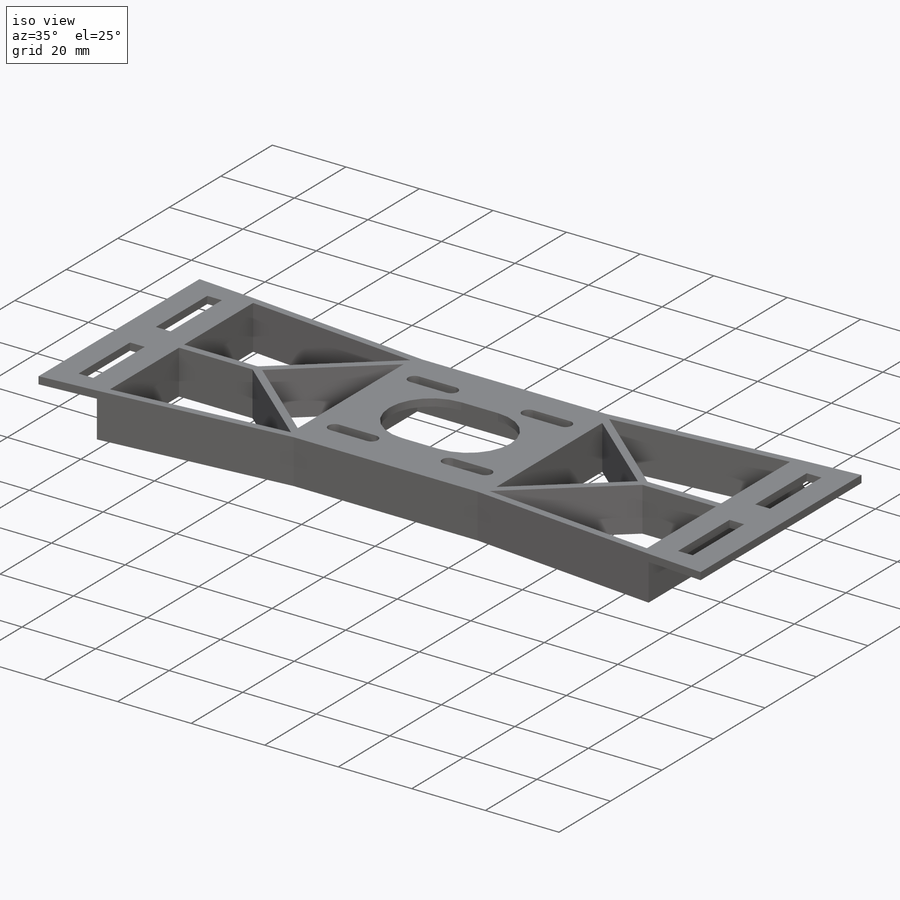
[diagram: iso view]
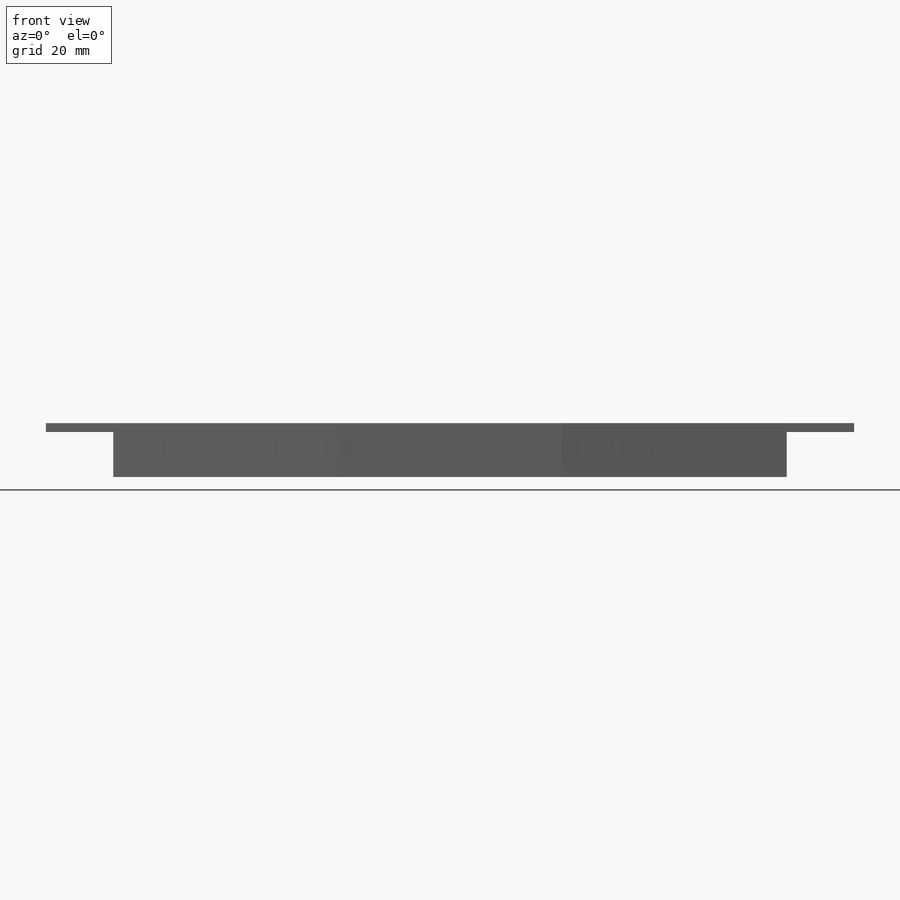
[diagram: front view]
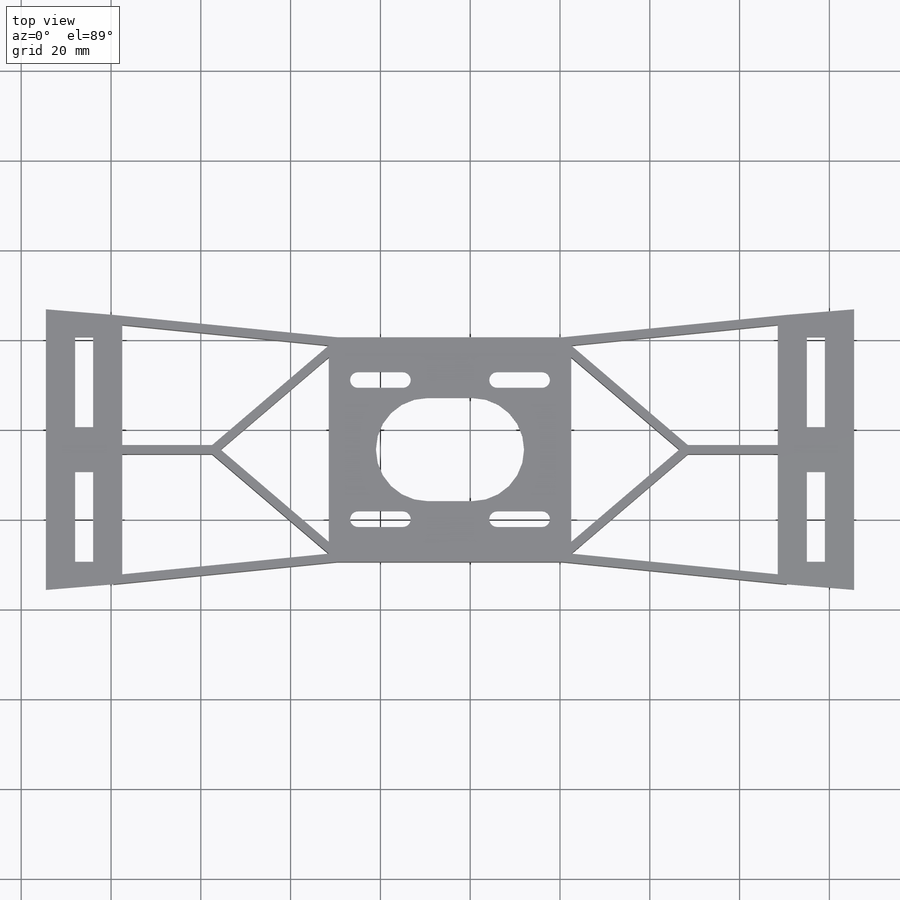
[diagram: top view]
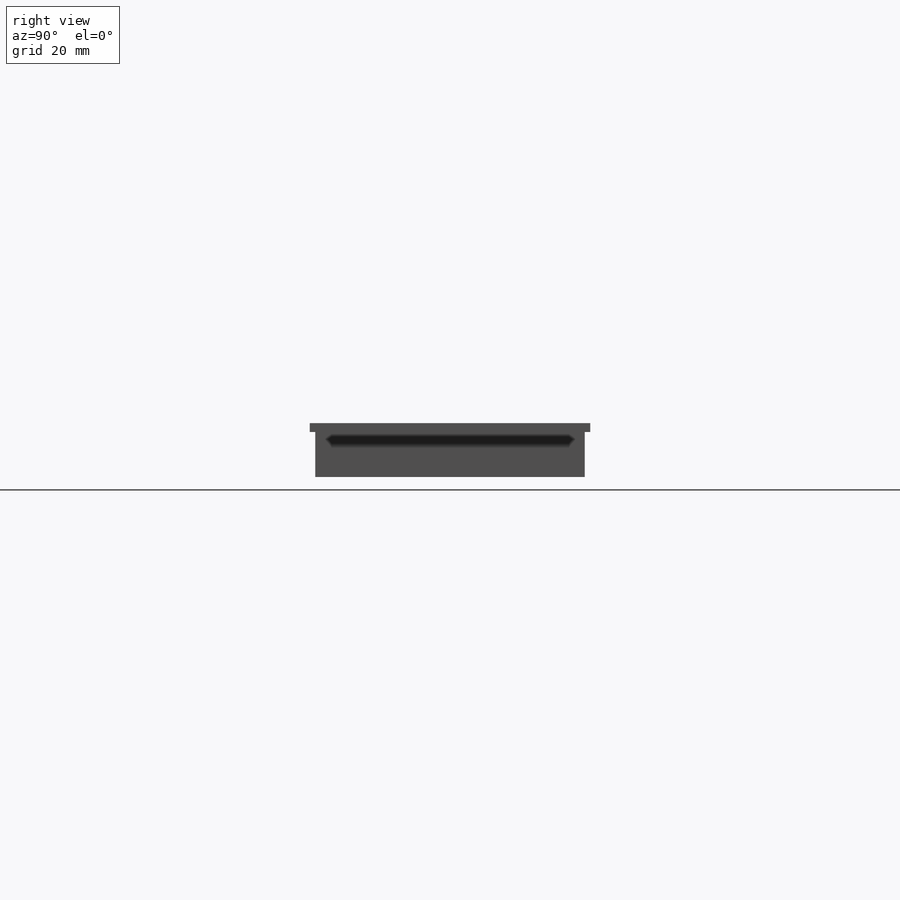
[diagram: right view]
SOLIDWORKS PART (.sldprt)
format: sldprt  version: not decoded by parser v0  size: 458,240 bytes
history: native  units: mm
features: sketch x7, extrude x5, cut_extrude x2, mirror x2, material x1, plane x1 (+13 scaffold rows collapsed)
feature tree (31):
  scaffold x13  (default folders/planes/origin — collapsed)
  material  "Material <not specified>"
  sketch  "Sketch1"  dims[c1.D23=22.0mm c1.D20=1.75mm c1.D22=1.75mm c1.D28=22.0mm c1.D1=31.0mm c1.D2=31.0mm c1.D3=10.0mm c1.D4=10.0mm c1.D5=10.0mm c1.D6=10.0mm c1.D7=10.0mm c1.D8=10.0mm c1.D9=10.0mm c1.D10=10.0mm c1.D11=5.0mm c1.D12=5.0mm c1.D13=5.0mm c1.D14=5.0mm c1.D15=5.0mm c1.D16=5.0mm c1.D17=5.0mm c1.D18=5.0mm c1.D19=3.5mm c2.D20=3.5mm c2.D21=3.5mm c2.D22=3.5mm c2.D19=3.5mm c3.D21=1.75mm c3.D24=170.0mm c3.D25=85.0mm c3.D26=50.0mm c3.D27=25.0mm c3.D23=23.0mm c4.D25=4.0mm c4.D27=5.0mm c4.D28=10.0mm]
  extrude  "Boss-Extrude1"  Depth=2mm
  sketch  "Sketch2"  dims[D1=2.0mm D2=2.0mm D3=10.0mm D4=10.0mm]
  extrude  "Boss-Extrude2"  Depth=10mm
  sketch  "Sketch3"  dims[D1=2.0mm D2=2.0mm]
  extrude  "Boss-Extrude3"  Depth=10mm
  sketch  "Sketch4"  dims[D1=25.0mm D2=25.0mm]
  cut_extrude  "Cut-Extrude2"  [1 undecoded]
  plane  "Plane1"  Offset=25mm
  mirror  "Mirror1"
  sketch  "Sketch5"  dims[c1.D1=50.0mm c1.D2=50.0mm c1.D3=30.0mm c1.D4=3.0mm c1.D5=3.0mm c1.D6=3.0mm c1.D7=3.0mm c2.D4=2.0mm c2.D5=2.0mm c2.D6=45.0mm c3.D4=2.0mm c3.D5=50.0mm c4.D5=~0.873716deg c5.D5=2.0mm c5.D6=2.0mm c5.D7=2.0mm c5.D8=2.0mm c5.D9=~1.821039mm c5.D10=2.0mm c5.D11=2.0mm c5.D12=1.0mm c5.D13=1.0mm c6.D12=1.0mm c6.D13=1.0mm c6.D14=~41.020904mm c6.D9=2.0mm c7.D14=~0.099751mm c7.D9=46.0mm]
  extrude  "Boss-Extrude5"  Depth=12mm
  sketch  "Sketch7"  dims[D1=15.0mm]
  extrude  "Boss-Extrude7"  Depth=2mm
  sketch  "Sketch8"  dims[D1=20.0mm D2=20.0mm D3=4.0mm D4=4.0mm D5=5.0mm D6=5.0mm D7=6.5mm D8=6.5mm]
  cut_extrude  "Cut-Extrude3"  Depth=2mm
  mirror  "Mirror2"
decode coverage: 13 of 16 modeling features carry decoded parameters
note: ~ marks probable driven/reference dimensions
note: 1 parameter value undecoded
note: suppression state not decoded; provenance and decode notes live in map.json
